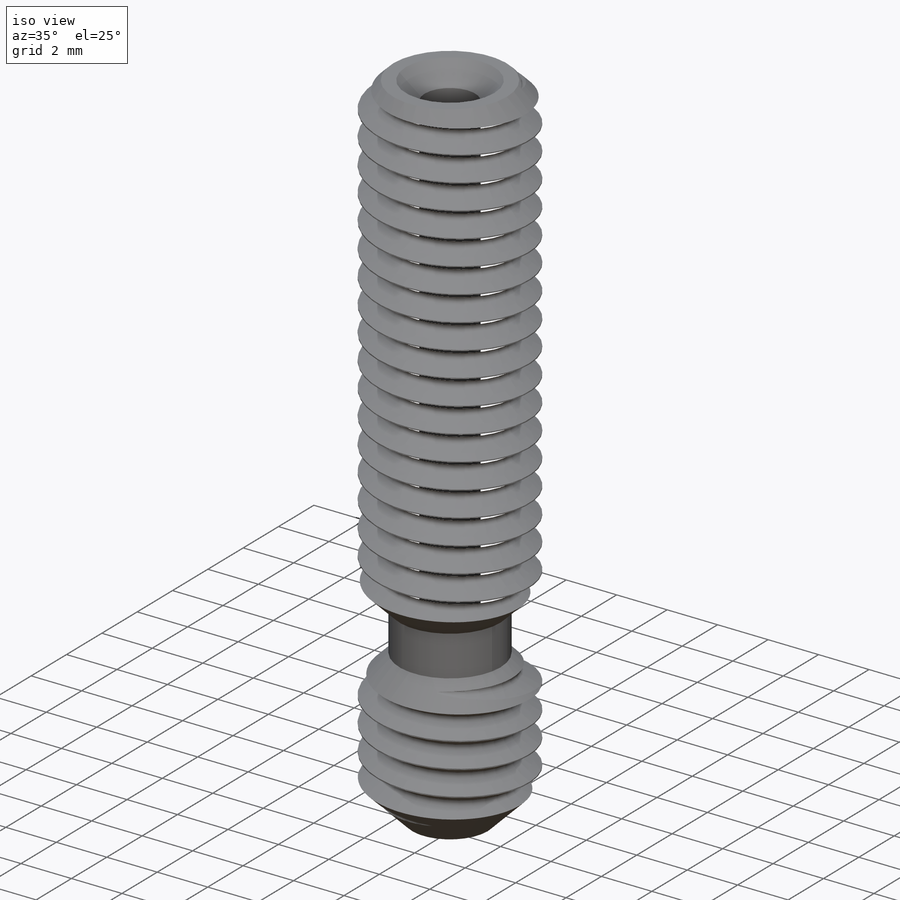
[diagram: iso view]
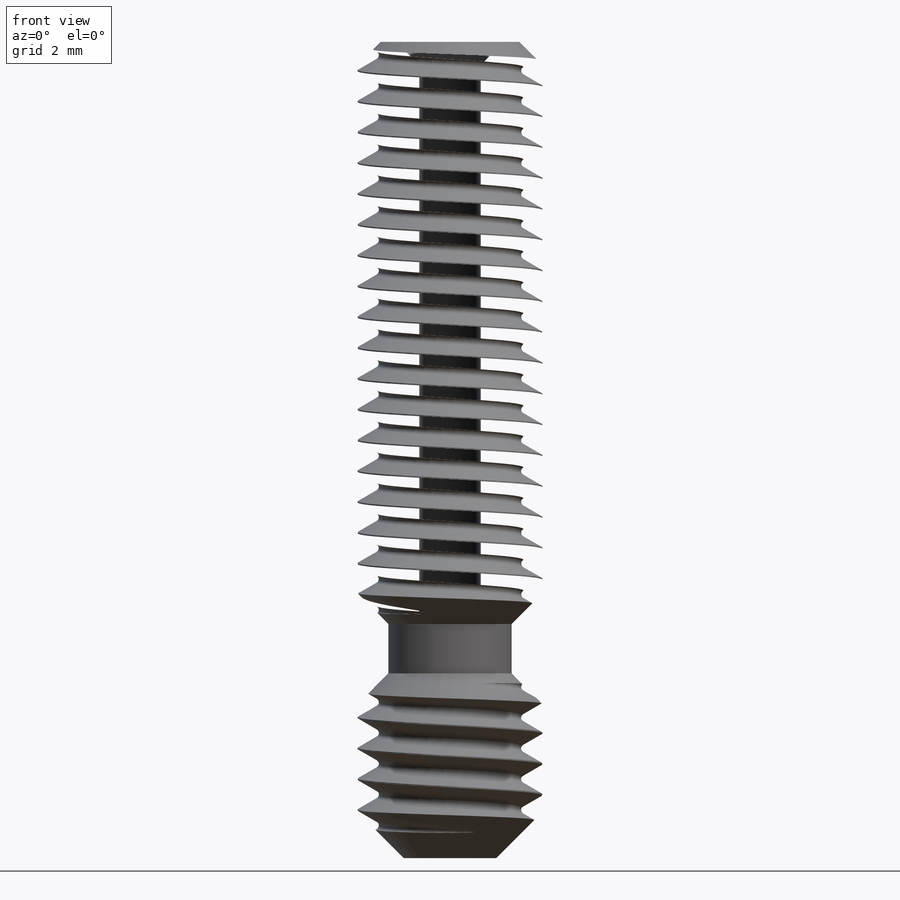
[diagram: front view]
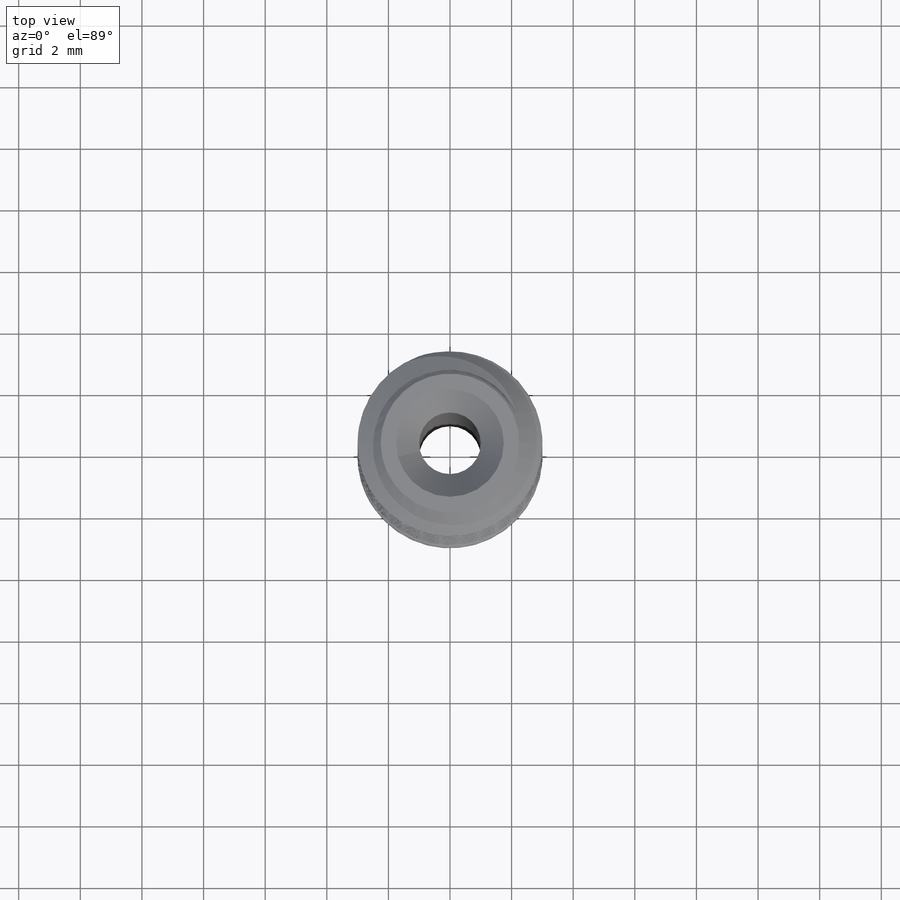
[diagram: top view]
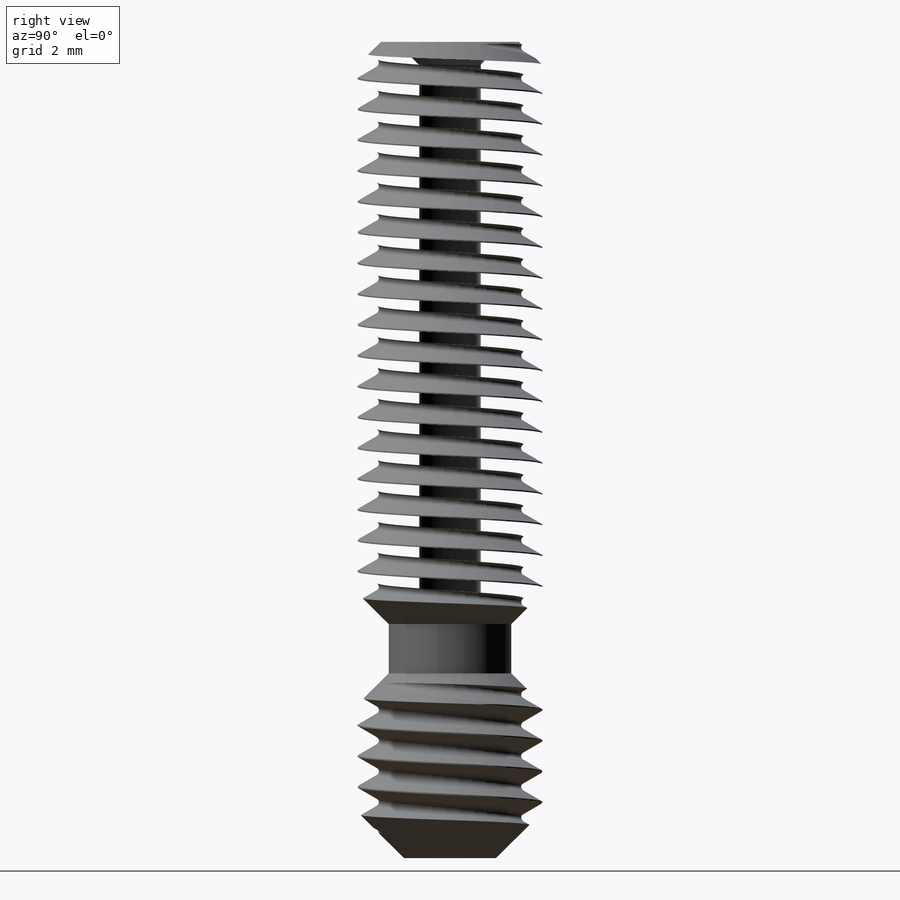
[diagram: right view]
SOLIDWORKS PART (.sldprt)
format: sldprt  version: not decoded by parser v0  size: 1,139,200 bytes
history: native  units: mm
features: sketch x4, chamfer x2, material x1, revolve x1, helix x1, sweep x1, cut_extrude x1 (+11 scaffold rows collapsed)
feature tree (22):
  scaffold x11  (default folders/planes/origin — collapsed)
  material  "Stainless Steel (ferritic)"
  sketch  "Sketch4"  dims[c1.D1=~4.818988mm c1.D2=90.0deg c2.D1=1.0mm c2.D2=1.0mm c2.D3=3.0mm c2.D4=4.0mm c2.D5=4.0mm c2.D6=~26.565157mm c2.D7=2.0mm c3.D6=40.0mm c3.D4=5.0mm c3.D5=14.5mm c3.D7=14.6mm c3.D8=1.2mm c3.D9=2.0mm c4.D7=1.2mm c4.D8=1.2mm c4.D3=2.0mm c5.D7=1.0mm c5.D8=1.0mm c5.D9=1.0mm c5.D10=1.0mm c5.D11=1.5mm c5.D5=6.0mm c6.D8=24.5mm c6.D10=8.6mm c6.D5=5.0mm c7.D5=45.0deg c7.D7=1.0mm c8.D7=45.0deg c8.D8=3.0mm c8.D6=26.5mm c8.D3=3.0mm c8.D9=1.0mm c8.D11=38.0mm c8.D12=1.0mm c9.D11=~0.925974mm c10.D11=45.0deg c10.D12=37.0mm c10.D13=2.0mm]
  revolve  "Revolve1"  Angle=360deg
  chamfer  "Chamfer2"  Distance=0.75mm Angle=45deg
  sketch  "Sketch6"  dims[c1.D2=0.144mm c1.D1=4.917mm c1.D3=~1.419099mm c2.D3=60.0deg c2.D1=4.917mm]
  sketch  "Sketch7"
  helix  "Helix/Spiral1"  Pitch=29.5mm
  chamfer  "Chamfer3"  Distance=1.5mm Angle=45deg
  sweep  "Cut-Sweep1"
  sketch  "Sketch8"
  cut_extrude  "Cut-Extrude1"  [1 undecoded]
decode coverage: 6 of 10 modeling features carry decoded parameters
note: ~ marks probable driven/reference dimensions
note: 1 parameter value undecoded
note: suppression state not decoded; provenance and decode notes live in map.json
